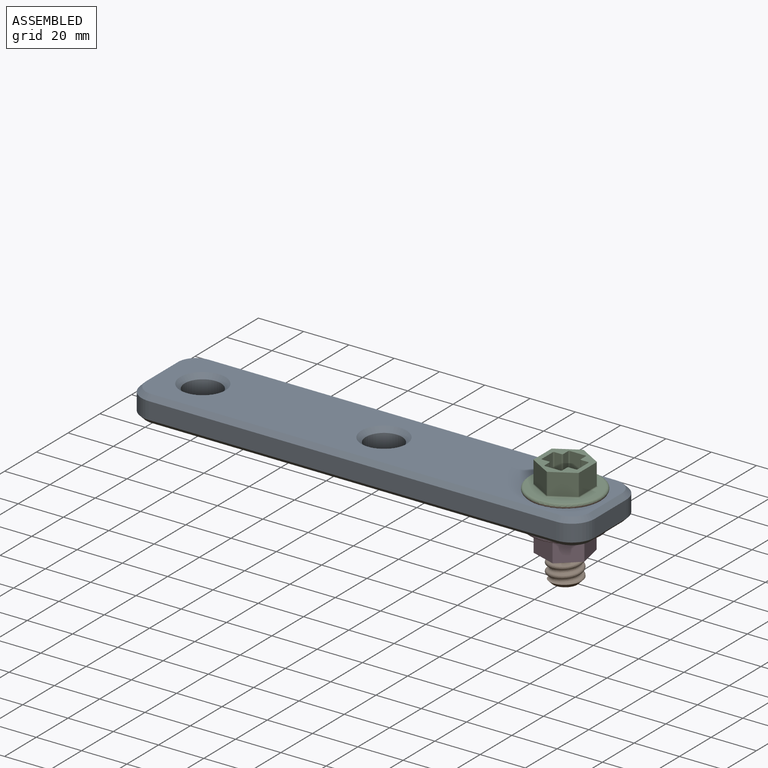
[diagram: assembled view]
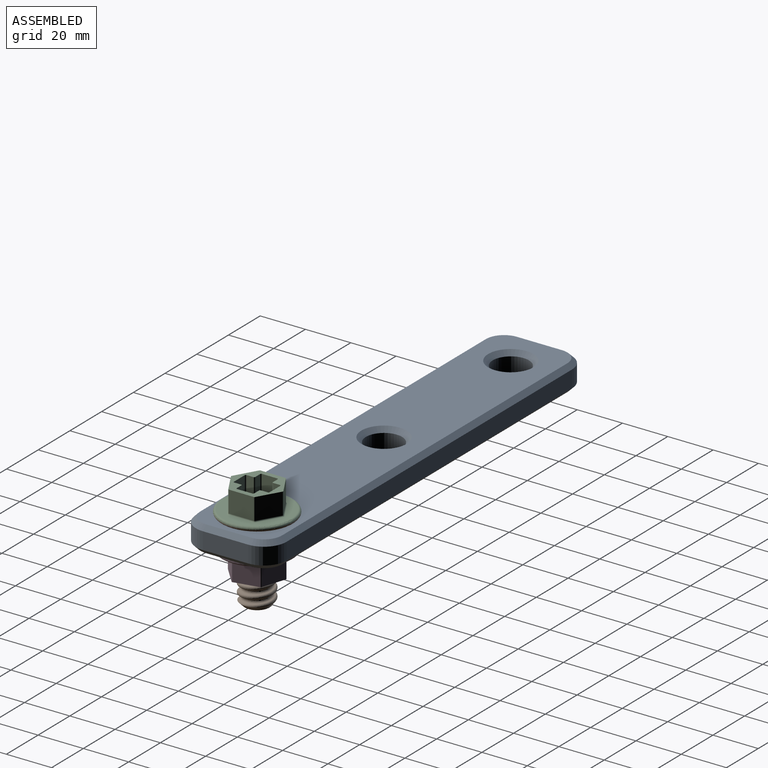
[diagram: assembled view, second angle]
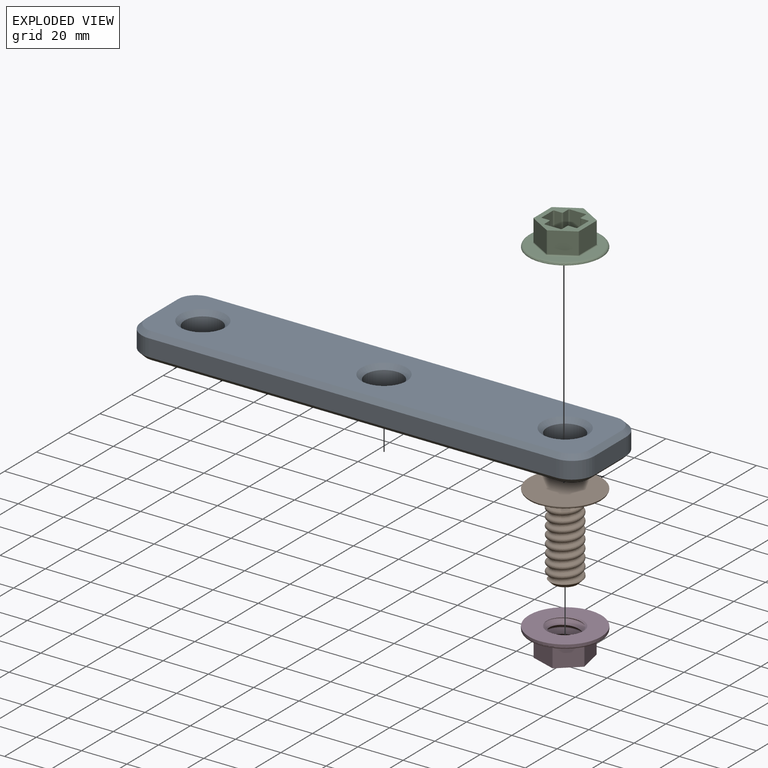
[diagram: exploded view]
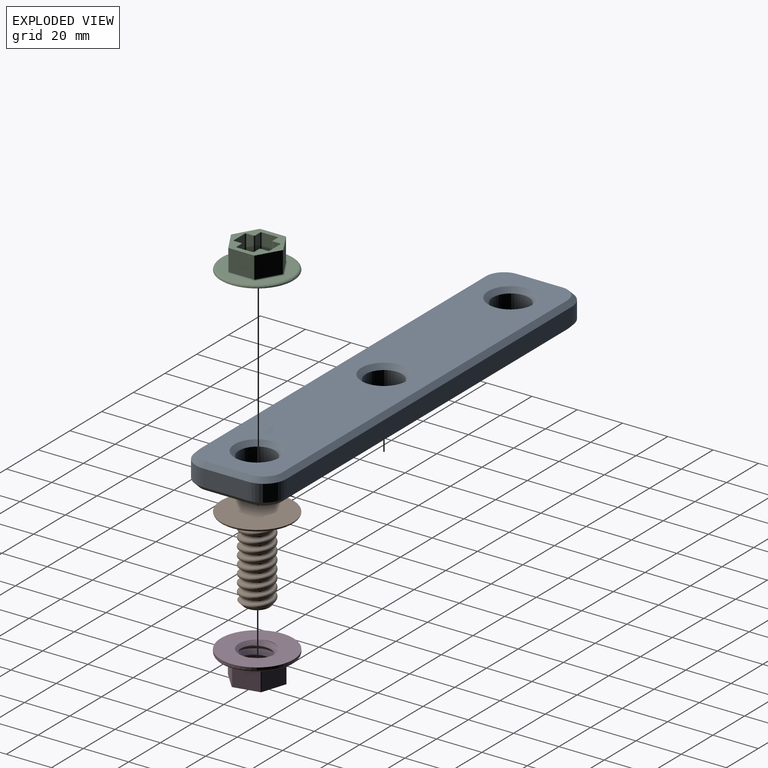
[diagram: exploded view, second angle]
ASSEMBLY  parts=4 mates=4
PART A: 35 faces, bbox 200x40x11.5 mm
  f0: cylinder r=10mm len=10mm, axis (0,0,-1), area 117.8mm2, adj f1,f7,f16,f27
  f1: plane 180x7.5mm, normal (0,-1,0), area 1350mm2, adj f0,f2,f17,f28
  f2: cylinder r=10mm len=10mm, axis (0,0,-1), area 117.8mm2, adj f1,f3,f19,f30
  f3: plane 20x7.5mm, normal (1,0,0), area 150mm2, adj f2,f4,f21,f32
  f4: cylinder r=10mm len=10mm, axis (0,0,-1), area 117.8mm2, adj f3,f5,f23,f34
  f5: plane 180x7.5mm, normal (0,1,0), area 1350mm2, adj f4,f6,f22,f33
  f6: cylinder r=10mm len=10mm, axis (0,0,-1), area 117.8mm2, adj f5,f7,f20,f31
  f7: plane 20x7.5mm, normal (-1,0,0), area 150mm2, adj f0,f6,f18,f29
  f8: plane 196x36mm, normal (0,0,1), area 6058.6mm2, adj f24,f25,f26,f27,f28,f29,f30,f31
  f9: plane 196x36mm, normal (0,0,-1), area 6058.6mm2, adj f13,f14,f15,f16,f17,f18,f19,f20
  f10: cylinder r=8mm len=16mm, axis (0,0,-1), area 377mm2, adj f14,f25
  f11: cylinder r=8mm len=16mm, axis (0,0,-1), area 377mm2, adj f13,f24
  f12: cylinder r=8mm len=16mm, axis (0,0,-1), area 377mm2, adj f15,f26
  f13: cone r=10mm half-angle=45deg, axis (0,0,-1), area 159.9mm2, adj f9,f11
  f14: cone r=10mm half-angle=45deg, axis (0,0,-1), area 159.9mm2, adj f9,f10
  f15: cone r=10mm half-angle=45deg, axis (0,0,-1), area 159.9mm2, adj f9,f12
  f16: cone r=10mm half-angle=45deg, axis (0,0,1), area 40mm2, adj f0,f9,f17,f18
  f17: plane 180x2mm, normal (0,-0.71,-0.71), area 509.1mm2, adj f1,f9,f16,f19
  f18: plane 20x2mm, normal (-0.71,0,-0.71), area 56.6mm2, adj f7,f9,f16,f20
  f19: cone r=10mm half-angle=45deg, axis (0,0,1), area 40mm2, adj f2,f9,f17,f21
  f20: cone r=10mm half-angle=45deg, axis (0,0,1), area 40mm2, adj f6,f9,f18,f22
  f21: plane 20x2mm, normal (0.71,0,-0.71), area 56.6mm2, adj f3,f9,f19,f23
  f22: plane 180x2mm, normal (0,0.71,-0.71), area 509.1mm2, adj f5,f9,f20,f23
  f23: cone r=10mm half-angle=45deg, axis (0,0,1), area 40mm2, adj f4,f9,f21,f22
  f24: cone r=8mm half-angle=45deg, axis (0,0,1), area 159.9mm2, adj f8,f11
  f25: cone r=8mm half-angle=45deg, axis (0,0,1), area 159.9mm2, adj f8,f10
  f26: cone r=8mm half-angle=45deg, axis (0,0,1), area 159.9mm2, adj f8,f12
  f27: cone r=8mm half-angle=45deg, axis (0,0,-1), area 40mm2, adj f0,f8,f28,f29
  f28: plane 180x2mm, normal (0,-0.71,0.71), area 509.1mm2, adj f1,f8,f27,f30
  f29: plane 20x2mm, normal (-0.71,0,0.71), area 56.6mm2, adj f7,f8,f27,f31
  f30: cone r=8mm half-angle=45deg, axis (0,0,-1), area 40mm2, adj f2,f8,f28,f32
  f31: cone r=8mm half-angle=45deg, axis (0,0,-1), area 40mm2, adj f6,f8,f29,f33
  f32: plane 20x2mm, normal (0.71,0,0.71), area 56.6mm2, adj f3,f8,f30,f34
  f33: plane 180x2mm, normal (0,0.71,0.71), area 509.1mm2, adj f5,f8,f31,f34
  f34: cone r=8mm half-angle=45deg, axis (0,0,-1), area 40mm2, adj f4,f8,f32,f33
PART B: 8 faces, bbox 35.4x35.4x40.3 mm
  f0: plane 30.79x30.79mm, normal (0,0,1), area 571.3mm2, adj f2,f5,f6,f7
  f1: plane 32x32mm, normal (0,0,-1), area 804.2mm2, adj f2
  f2: torus R=15mm, axis (0,0,1), area 154.3mm2, adj f0,f1
  f3: plane 10.75x10.75mm, normal (0,0,1), area 90.8mm2, adj f4
  f4: cone r=5.38mm half-angle=45deg, axis (0,0,-1), area 62.6mm2, adj f3,f5,f6,f7
  f5: bspline ~37.23x17.03mm, area 541mm2, adj f0,f4,f6,f7
  f6: bspline ~39.48x15.22mm, area 1035.1mm2, adj f0,f4,f5,f7
  f7: bspline ~36.02x17.03mm, area 537mm2, adj f0,f4,f5,f6
PART C: 77 faces, bbox 34.6x34.6x11 mm
  f0: plane 22.94x20mm, normal (0,0,1), area 162.5mm2, adj f3,f4,f5,f6,f7,f8,f9,f10
  f1: plane 30x30mm, normal (0,0,1), area 325.3mm2, adj f2,f11,f12,f13,f14,f17,f18,f19
  f2: torus R=15mm, axis (0,0,1), area 154.3mm2, adj f1,f27
  f3: plane 10.97x9.5mm, normal (1,0,0), area 104.2mm2, adj f0,f21,f22,f26
  f4: plane 9.5x9.5mm, normal (0.5,0.87,0), area 104.2mm2, adj f0,f16,f22,f23
  f5: plane 9.5x9.5mm, normal (-0.5,0.87,0), area 104.2mm2, adj f0,f10,f16,f17
  f6: plane 10.97x9.5mm, normal (-1,0,0), area 104.2mm2, adj f0,f9,f10,f11
  f7: plane 9.5x9.5mm, normal (-0.5,-0.87,0), area 104.2mm2, adj f0,f9,f14,f15
  f8: plane 9.5x9.5mm, normal (0.5,-0.87,0), area 104.2mm2, adj f0,f15,f20,f21
  f9: cylinder r=0.5mm len=9.5mm, axis (0,0,-1), area 5mm2, adj f0,f6,f7,f12
  f10: cylinder r=0.5mm len=9.5mm, axis (0,0,-1), area 5mm2, adj f0,f5,f6,f13
  f11: cylinder r=0.5mm len=10.97mm, axis (0,1,0), area 8.6mm2, adj f1,f6,f12,f13
  f12: torus R=1mm, axis (0,0,1), area 0.6mm2, adj f1,f9,f11,f14
  f13: torus R=1mm, axis (0,0,1), area 0.6mm2, adj f1,f10,f11,f17
  f14: cylinder r=0.5mm len=9.75mm, axis (-0.87,0.5,0), area 8.6mm2, adj f1,f7,f12,f18
  f15: cylinder r=0.5mm len=9.5mm, axis (0,0,-1), area 5mm2, adj f0,f7,f8,f18
  f16: cylinder r=0.5mm len=9.5mm, axis (0,0,-1), area 5mm2, adj f0,f4,f5,f19
  f17: cylinder r=0.5mm len=9.75mm, axis (0.87,0.5,0), area 8.6mm2, adj f1,f5,f13,f19
  f18: torus R=1mm, axis (0,0,1), area 0.6mm2, adj f1,f14,f15,f20
  f19: torus R=1mm, axis (0,0,1), area 0.6mm2, adj f1,f16,f17,f23
  f20: cylinder r=0.5mm len=9.75mm, axis (-0.87,-0.5,0), area 8.6mm2, adj f1,f8,f18,f24
  f21: cylinder r=0.5mm len=9.5mm, axis (0,0,-1), area 5mm2, adj f0,f3,f8,f24
  f22: cylinder r=0.5mm len=9.5mm, axis (0,0,-1), area 5mm2, adj f0,f3,f4,f25
  f23: cylinder r=0.5mm len=9.75mm, axis (0.87,-0.5,0), area 8.6mm2, adj f1,f4,f19,f25
  f24: torus R=1mm, axis (0,0,1), area 0.6mm2, adj f1,f20,f21,f26
  f25: torus R=1mm, axis (0,0,1), area 0.6mm2, adj f1,f22,f23,f26
  f26: cylinder r=0.5mm len=10.97mm, axis (0,-1,0), area 8.6mm2, adj f1,f3,f24,f25
  f27: plane 32x32mm, normal (0,0,-1), area 804.2mm2, adj f2
  f28: cylinder r=0.5mm len=9.5mm, axis (0,0,-1), area 7.5mm2, adj f0,f29,f51,f73
  f29: plane 9.5x3mm, normal (-1,0,0), area 28.5mm2, adj f0,f28,f30,f71
  f30: cylinder r=0.5mm len=9.5mm, axis (0,0,-1), area 7.5mm2, adj f0,f29,f31,f69
  f31: plane 9.5x3mm, normal (0,1,0), area 28.5mm2, adj f0,f30,f32,f67
  f32: cylinder r=0.5mm len=9.5mm, axis (0,0,-1), area 7.5mm2, adj f0,f31,f33,f65
  f33: plane 9.5x6.75mm, normal (-1,0,0), area 64.1mm2, adj f0,f32,f34,f63
  f34: cylinder r=0.5mm len=9.5mm, axis (0,0,-1), area 7.5mm2, adj f0,f33,f35,f61
  f35: plane 9.5x3mm, normal (0,-1,0), area 28.5mm2, adj f0,f34,f36,f59
  f36: cylinder r=0.5mm len=9.5mm, axis (0,0,-1), area 7.5mm2, adj f0,f35,f37,f57
  f37: plane 9.5x3mm, normal (-1,0,0), area 28.5mm2, adj f0,f36,f38,f55
  f38: cylinder r=0.5mm len=9.5mm, axis (0,0,-1), area 7.5mm2, adj f0,f37,f39,f53
  f39: plane 9.5x6.75mm, normal (0,-1,0), area 64.1mm2, adj f0,f38,f40,f54
  f40: cylinder r=0.5mm len=9.5mm, axis (0,0,-1), area 7.5mm2, adj f0,f39,f41,f56
  f41: plane 9.5x3mm, normal (1,0,0), area 28.5mm2, adj f0,f40,f42,f58
  f42: cylinder r=0.5mm len=9.5mm, axis (0,0,-1), area 7.5mm2, adj f0,f41,f43,f60
  f43: plane 9.5x3mm, normal (0,-1,0), area 28.5mm2, adj f0,f42,f44,f62
  f44: cylinder r=0.5mm len=9.5mm, axis (0,0,-1), area 7.5mm2, adj f0,f43,f45,f64
  f45: plane 9.5x6.75mm, normal (1,0,0), area 64.1mm2, adj f0,f44,f46,f66
  f46: cylinder r=0.5mm len=9.5mm, axis (0,0,-1), area 7.5mm2, adj f0,f45,f47,f68
  f47: plane 9.5x3mm, normal (0,1,0), area 28.5mm2, adj f0,f46,f48,f70
  f48: cylinder r=0.5mm len=9.5mm, axis (0,0,-1), area 7.5mm2, adj f0,f47,f49,f72
  f49: plane 9.5x3mm, normal (1,0,0), area 28.5mm2, adj f0,f48,f50,f74
  f50: cylinder r=0.5mm len=9.5mm, axis (0,0,-1), area 7.5mm2, adj f0,f49,f51,f76
  f51: plane 9.5x6.75mm, normal (0,1,0), area 64.1mm2, adj f0,f28,f50,f75
  f52: plane 14.75x14.75mm, normal (0,0,1), area 154.4mm2, adj f54,f55,f57,f58,f59,f60,f62,f63
  f53: sphere r=0.5mm, area 0.4mm2, adj f38,f54,f55
  f54: cylinder r=0.5mm len=6.75mm, axis (1,0,0), area 5.3mm2, adj f39,f52,f53,f56
  f55: cylinder r=0.5mm len=3mm, axis (0,-1,0), area 2.4mm2, adj f37,f52,f53,f57
  f56: sphere r=0.5mm, area 0.4mm2, adj f40,f54,f58
  f57: torus R=1mm, axis (0,0,1), area 0.8mm2, adj f36,f52,f55,f59
  f58: cylinder r=0.5mm len=3mm, axis (0,1,0), area 2.4mm2, adj f41,f52,f56,f60
  f59: cylinder r=0.5mm len=3mm, axis (1,0,0), area 2.4mm2, adj f35,f52,f57,f61
  f60: torus R=1mm, axis (0,0,1), area 0.8mm2, adj f42,f52,f58,f62
  f61: sphere r=0.5mm, area 0.4mm2, adj f34,f59,f63
  f62: cylinder r=0.5mm len=3mm, axis (1,0,0), area 2.4mm2, adj f43,f52,f60,f64
  f63: cylinder r=0.5mm len=6.75mm, axis (0,-1,0), area 5.3mm2, adj f33,f52,f61,f65
  f64: sphere r=0.5mm, area 0.4mm2, adj f44,f62,f66
  f65: sphere r=0.5mm, area 0.4mm2, adj f32,f63,f67
  f66: cylinder r=0.5mm len=6.75mm, axis (0,1,0), area 5.3mm2, adj f45,f52,f64,f68
  f67: cylinder r=0.5mm len=3mm, axis (-1,0,0), area 2.4mm2, adj f31,f52,f65,f69
  f68: sphere r=0.5mm, area 0.4mm2, adj f46,f66,f70
  f69: torus R=1mm, axis (0,0,1), area 0.8mm2, adj f30,f52,f67,f71
  f70: cylinder r=0.5mm len=3mm, axis (-1,0,0), area 2.4mm2, adj f47,f52,f68,f72
  f71: cylinder r=0.5mm len=3mm, axis (0,-1,0), area 2.4mm2, adj f29,f52,f69,f73
  f72: torus R=1mm, axis (0,0,1), area 0.8mm2, adj f48,f52,f70,f74
  f73: sphere r=0.5mm, area 0.4mm2, adj f28,f71,f75
  f74: cylinder r=0.5mm len=3mm, axis (0,1,0), area 2.4mm2, adj f49,f52,f72,f76
  f75: cylinder r=0.5mm len=6.75mm, axis (-1,0,0), area 5.3mm2, adj f51,f52,f73,f76
  f76: sphere r=0.5mm, area 0.4mm2, adj f50,f74,f75
PART D: 35 faces, bbox 34.6x34.6x15.8 mm
  f0: cylinder r=16mm len=32mm, axis (0,0,-1), area 100.5mm2, adj f2,f3
  f1: plane 30x30mm, normal (0,0,1), area 325.3mm2, adj f3,f13,f14,f15,f16,f19,f20,f21
  f2: plane 32x32mm, normal (0,0,-1), area 603.2mm2, adj f0,f30,f33
  f3: torus R=15mm, axis (0,0,1), area 154.3mm2, adj f0,f1
  f4: plane 10.97x9.5mm, normal (1,0,0), area 104.2mm2, adj f10,f23,f24,f28
  f5: plane 9.5x9.5mm, normal (0.5,0.87,0), area 104.2mm2, adj f10,f18,f24,f25
  f6: plane 9.5x9.5mm, normal (-0.5,0.87,0), area 104.2mm2, adj f10,f12,f18,f19
  f7: plane 10.97x9.5mm, normal (-1,0,0), area 104.2mm2, adj f10,f11,f12,f13
  f8: plane 9.5x9.5mm, normal (-0.5,-0.87,0), area 104.2mm2, adj f10,f11,f16,f17
  f9: plane 9.5x9.5mm, normal (0.5,-0.87,0), area 104.2mm2, adj f10,f17,f22,f23
  f10: plane 22.94x20mm, normal (0,0,1), area 145.3mm2, adj f4,f5,f6,f7,f8,f9,f11,f12
  f11: cylinder r=0.5mm len=9.5mm, axis (0,0,-1), area 5mm2, adj f7,f8,f10,f14
  f12: cylinder r=0.5mm len=9.5mm, axis (0,0,-1), area 5mm2, adj f6,f7,f10,f15
  f13: cylinder r=0.5mm len=10.97mm, axis (0,1,0), area 8.6mm2, adj f1,f7,f14,f15
  f14: torus R=1mm, axis (0,0,1), area 0.6mm2, adj f1,f11,f13,f16
  f15: torus R=1mm, axis (0,0,1), area 0.6mm2, adj f1,f12,f13,f19
  f16: cylinder r=0.5mm len=9.75mm, axis (-0.87,0.5,0), area 8.6mm2, adj f1,f8,f14,f20
  f17: cylinder r=0.5mm len=9.5mm, axis (0,0,-1), area 5mm2, adj f8,f9,f10,f20
  f18: cylinder r=0.5mm len=9.5mm, axis (0,0,-1), area 5mm2, adj f5,f6,f10,f21
  f19: cylinder r=0.5mm len=9.75mm, axis (0.87,0.5,0), area 8.6mm2, adj f1,f6,f15,f21
  f20: torus R=1mm, axis (0,0,1), area 0.6mm2, adj f1,f16,f17,f22
  f21: torus R=1mm, axis (0,0,1), area 0.6mm2, adj f1,f18,f19,f25
  f22: cylinder r=0.5mm len=9.75mm, axis (-0.87,-0.5,0), area 8.6mm2, adj f1,f9,f20,f26
  f23: cylinder r=0.5mm len=9.5mm, axis (0,0,-1), area 5mm2, adj f4,f9,f10,f26
  f24: cylinder r=0.5mm len=9.5mm, axis (0,0,-1), area 5mm2, adj f4,f5,f10,f27
  f25: cylinder r=0.5mm len=9.75mm, axis (0.87,-0.5,0), area 8.6mm2, adj f1,f5,f21,f27
  f26: torus R=1mm, axis (0,0,1), area 0.6mm2, adj f1,f22,f23,f28
  f27: torus R=1mm, axis (0,0,1), area 0.6mm2, adj f1,f24,f25,f28
  f28: cylinder r=0.5mm len=10.97mm, axis (0,-1,0), area 8.6mm2, adj f1,f4,f26,f27
  f29: cylinder r=6.5mm len=13mm, axis (0,0,-1), area 0.8mm2, adj f30,f31,f32,f34
  f30: cone r=8mm half-angle=45deg, axis (0,0,-1), area 46.6mm2, adj f2,f29,f32,f34
  f31: cone r=6.5mm half-angle=45deg, axis (0,0,1), area 46.6mm2, adj f10,f29,f32,f34
  f32: bspline ~18.48x16mm, area 281mm2, adj f29,f30,f31,f33
  f33: cylinder r=8mm len=16mm, axis (0,0,-1), area 42.8mm2, adj f2,f10,f32,f34
  f34: bspline ~18.48x16mm, area 318.1mm2, adj f29,f30,f31,f33
PLACE A rot(axis=(0,0,-1),180deg) t=(0.68,41.23,13.53)mm fixed
PLACE B rot(axis=(-1,0,0),180deg) t=(80.68,41.23,26.03)mm
PLACE C rot(axis=(-0.07,-0.99,0.08),0deg) t=(80.68,41.23,26.03)mm
PLACE D rot(axis=(0.81,0.59,0),180deg) t=(80.68,41.23,13.03)mm
MATE cylindrical D.f0 <-> B.f2  axis (0,0,-1) through (80.68,41.23,13.03)mm
MATE slider B.f2 <-> A.f12  axis (0,0,-1) through (80.68,41.23,25.03)mm
MATE cylindrical D.f0 <-> A.f12  axis (0,0,-1) through (80.68,41.23,13.03)mm
MATE fastened C.f2 <-> B.f2  axis (0,0,-1) through (80.68,41.23,25.03)mm
